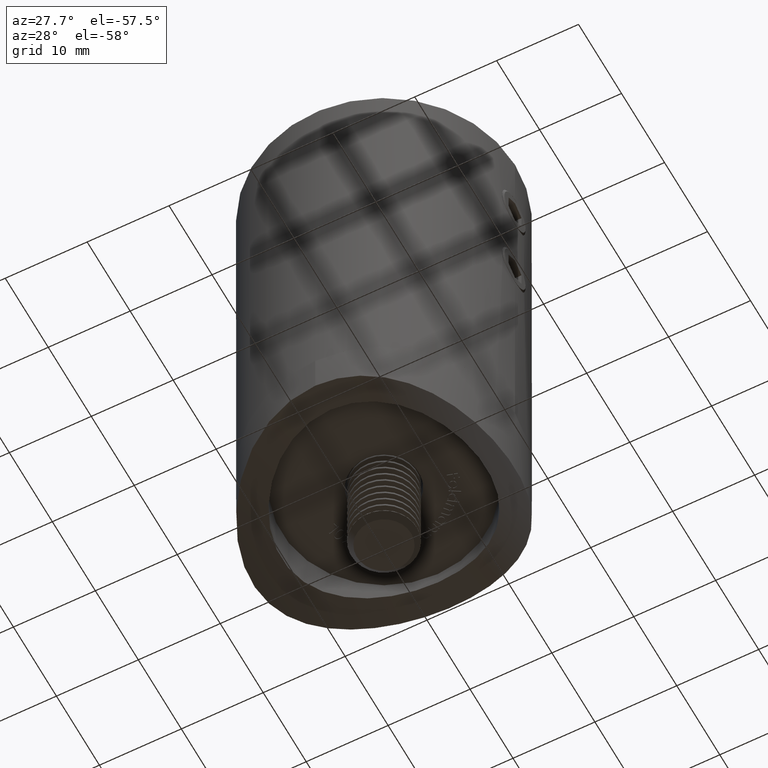
[diagram: clean part render]
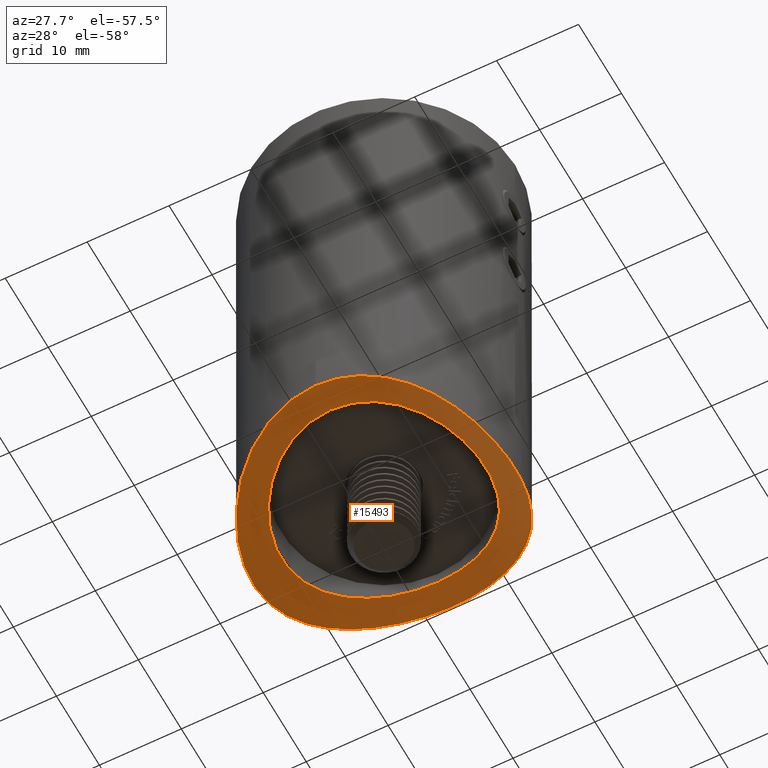
[diagram: same view with one face highlighted and labeled with its STEP entity id]
A machine part, auxiliary view. The second image highlights one B-rep face of the part: STEP entity #15493.
In plain terms, the highlighted cylindrical surface (partial cylindrical patch) has radius 24.15 mm, axis along (0, 1, 0).
Its self-contained STEP definition (entity closure, byte-faithful):
#168 = CARTESIAN_POINT ( 'NONE',  ( 4.878909776184769953E-16, 3.465933333802039860E-15, -16.00000000000000711 ) ) ;
#233 = EDGE_LOOP ( 'NONE', ( #15761 ) ) ;
#375 = CARTESIAN_POINT ( 'NONE',  ( -8.551384528557964160, -1.560042046064436416, 13.53284123907771175 ) ) ;
#447 = CARTESIAN_POINT ( 'NONE',  ( -1.042858073736825597, -0.01647405515341673898, 15.97517427357765563 ) ) ;
#516 = CARTESIAN_POINT ( 'NONE',  ( -15.42321579544490184, -5.566283524729522370, 4.265649853437405881 ) ) ;
#551 = CARTESIAN_POINT ( 'NONE',  ( 11.22171516179564854, -2.762517631140664509, 5.567231885764328148 ) ) ;
#585 = CARTESIAN_POINT ( 'NONE',  ( 5.320418285404791447, -0.5719942947260659993, 15.12623773592640930 ) ) ;
#626 = CARTESIAN_POINT ( 'NONE',  ( 0.8416139926660898274, 3.469446951953590917E-15, -12.50000000000000711 ) ) ;
#662 = CARTESIAN_POINT ( 'NONE',  ( 14.31986462821768313, -4.696873124689878054, -7.211724514559750610 ) ) ;
#698 = CARTESIAN_POINT ( 'NONE',  ( 11.67831068887509183, -3.010663022005199974, -4.475638660923369372 ) ) ;
#758 = CARTESIAN_POINT ( 'NONE',  ( 4.109752741455194425, -0.3489297180019296785, 11.81226899662650176 ) ) ;
#765 = FACE_OUTER_BOUND ( 'NONE', #7725, .T. ) ;
#822 = CARTESIAN_POINT ( 'NONE',  ( 1.693364542386448068, -0.04548548441427882616, 12.41272702035197284 ) ) ;
#890 = CARTESIAN_POINT ( 'NONE',  ( -12.40093975770249202, -3.427031647108957468, -1.625193573246781709 ) ) ;
#921 = CARTESIAN_POINT ( 'NONE',  ( -9.411353361399397599, -1.904576057870598804, -12.94954299253910968 ) ) ;
#984 = CARTESIAN_POINT ( 'NONE',  ( -0.5467149535870703403, 3.476223215531642281E-15, -16.00000000000000711 ) ) ;
#1742 = CARTESIAN_POINT ( 'NONE',  ( 5.275747725206339389, -0.5775232300563346577, -15.11469623726103606 ) ) ;
#1800 = VERTEX_POINT ( 'NONE', #15099 ) ;
#1953 = CARTESIAN_POINT ( 'NONE',  ( 4.310827683376341923, -0.3640347307496384910, 15.44594141629692352 ) ) ;
#2022 = CARTESIAN_POINT ( 'NONE',  ( -12.05392479121809046, -3.207642341430238186, 10.57031934000033147 ) ) ;
#2095 = CARTESIAN_POINT ( 'NONE',  ( -2.662944644146644446, -0.1413683881137999532, 15.78602135888619529 ) ) ;
#2133 = CARTESIAN_POINT ( 'NONE',  ( 11.83531592272858290, -3.098469632034195786, 4.042869024516788201 ) ) ;
#2168 = CARTESIAN_POINT ( 'NONE',  ( 15.89507951209992420, -5.966280007977300848, 2.121861214580270438 ) ) ;
#2199 = CARTESIAN_POINT ( 'NONE',  ( -1.630651670391556118, -0.05147306847736196622, 12.40031129654895992 ) ) ;
#2234 = CARTESIAN_POINT ( 'NONE',  ( 15.99889945513611700, -6.059734157207304683, -0.5739181088469769154 ) ) ;
#2269 = CARTESIAN_POINT ( 'NONE',  ( 9.923142205795825177, -2.131111030546360308, 7.612074174934297055 ) ) ;
#2296 = CARTESIAN_POINT ( 'NONE',  ( -7.232166046226576661, -1.086845825324251003, -14.31039729867868182 ) ) ;
#2333 = CARTESIAN_POINT ( 'NONE',  ( 5.594287980704874208, -0.6442781208208000487, -11.20816533570559592 ) ) ;
#2364 = CARTESIAN_POINT ( 'NONE',  ( -3.485726828505891106, -0.2514084154458020026, -15.61799768039313996 ) ) ;
#2399 = CARTESIAN_POINT ( 'NONE',  ( 7.643601615584866948, -1.239174722017980956, -9.898850495652817827 ) ) ;
#2425 = CARTESIAN_POINT ( 'NONE',  ( -14.33314076264084136, -4.706689628118392754, -7.185494220534367926 ) ) ;
#2464 = CARTESIAN_POINT ( 'NONE',  ( -10.16369364889731308, -2.241477199381396446, -7.287758421890135452 ) ) ;
#2489 = CARTESIAN_POINT ( 'NONE',  ( -4.268279367806601776, -0.3787143447972567412, -15.42252057435309176 ) ) ;
#2594 = CARTESIAN_POINT ( 'NONE',  ( -5.226925829154971836, -0.5693079560569049846, -11.36202694756623721 ) ) ;
#2662 = CARTESIAN_POINT ( 'NONE',  ( -2.094311208364756371, -0.08749313957578185030, -12.33032299215525818 ) ) ;
#3188 = CARTESIAN_POINT ( 'NONE',  ( 5.772343269960320988, -0.6946781532575976303, -14.93167379752965473 ) ) ;
#3464 = CARTESIAN_POINT ( 'NONE',  ( 2.162802222802237218, -0.07385003039676880932, -15.88913970827019284 ) ) ;
#3537 = CARTESIAN_POINT ( 'NONE',  ( -8.110807478866485454, -1.397652382978113561, 13.80164670675395300 ) ) ;
#3615 = CARTESIAN_POINT ( 'NONE',  ( 15.42559031887747523, -5.567332529912010664, -4.281581221595087250 ) ) ;
#3686 = CARTESIAN_POINT ( 'NONE',  ( 15.77490872757177520, -5.863532677428071160, -2.726765751964202789 ) ) ;
#3729 = CARTESIAN_POINT ( 'NONE',  ( 8.296859981971229203, -1.461839374236833189, 9.383618653070680438 ) ) ;
#3759 = CARTESIAN_POINT ( 'NONE',  ( 13.57136654030459866, -4.171130408817958823, 8.489749767725491836 ) ) ;
#3795 = CARTESIAN_POINT ( 'NONE',  ( -6.290458467577763280, -0.8231097910722736666, 10.83203505537224665 ) ) ;
#3833 = CARTESIAN_POINT ( 'NONE',  ( 12.70400355167247319, -3.608075241889363127, 9.739886530507446238 ) ) ;
#3868 = CARTESIAN_POINT ( 'NONE',  ( -0.3758445865019243159, 0.0006470260009834786878, 12.50125005891698926 ) ) ;
#3896 = CARTESIAN_POINT ( 'NONE',  ( -5.790292232700016584, -0.6991425015800778464, -14.92465879011944452 ) ) ;
#3934 = CARTESIAN_POINT ( 'NONE',  ( 9.412192866964707250, -1.907903693207506635, 8.235475087461974653 ) ) ;
#3964 = CARTESIAN_POINT ( 'NONE',  ( 0.000000000000000000, 3.469446951953614189E-15, -12.50000000000000000 ) ) ;
#3970 = CARTESIAN_POINT ( 'NONE',  ( -14.93763095668425933, -5.172266547697089045, -5.756278679030428336 ) ) ;
#4001 = CARTESIAN_POINT ( 'NONE',  ( 3.280682860040506466, -0.2205064101225591155, -12.06894086756878792 ) ) ;
#4192 = CARTESIAN_POINT ( 'NONE',  ( -0.4208069963330455243, 3.476223215531643070E-15, -12.50000000000000355 ) ) ;
#4786 = CARTESIAN_POINT ( 'NONE',  ( 9.842730464393167011, -2.077531809922397610, -12.65667063551272697 ) ) ;
#5123 = CARTESIAN_POINT ( 'NONE',  ( 15.44214941605699387, -5.581131056128653789, 4.221083223141256724 ) ) ;
#5195 = CARTESIAN_POINT ( 'NONE',  ( -13.81742950120149516, -4.341107592674501525, 8.083516411768695065 ) ) ;
#5228 = CARTESIAN_POINT ( 'NONE',  ( 9.394847521644635435, -1.900573235167552610, -8.255202184159772472 ) ) ;
#5264 = CARTESIAN_POINT ( 'NONE',  ( -15.88834132209191274, -5.960334649251885608, 2.171086772573057821 ) ) ;
#5301 = CARTESIAN_POINT ( 'NONE',  ( 0.8701867918572792071, -0.001390958110063332878, 12.49731265922301660 ) ) ;
#5330 = CARTESIAN_POINT ( 'NONE',  ( -5.258828131823481300, -0.5579214799764438126, 15.14813486559561007 ) ) ;
#5368 = CARTESIAN_POINT ( 'NONE',  ( -9.909193422454757538, -2.120910015980589147, 7.662299098335453529 ) ) ;
#5398 = CARTESIAN_POINT ( 'NONE',  ( 6.773507639207513975, -0.9639315492255671192, 14.50507062910953238 ) ) ;
#5439 = CARTESIAN_POINT ( 'NONE',  ( 9.125846458580159748, -1.788567383216229878, -8.551539796307121577 ) ) ;
#5500 = CARTESIAN_POINT ( 'NONE',  ( 10.14872829841706015, -2.234525669153278660, -7.308644647692618790 ) ) ;
#5692 = CARTESIAN_POINT ( 'NONE',  ( -9.411987761562494725, -1.907810120690277333, -8.235748521031599267 ) ) ;
#5729 = VERTEX_POINT ( 'NONE', #3964 ) ;
#5762 = CARTESIAN_POINT ( 'NONE',  ( -12.07716066025249901, -3.235827473606688987, 3.330140473100307918 ) ) ;
#6169 = CYLINDRICAL_SURFACE ( 'NONE', #12709, 24.15000000000000568 ) ;
#6429 = CARTESIAN_POINT ( 'NONE',  ( 4.251902136647176533, -0.3715117522175356291, -15.43401712533286130 ) ) ;
#6494 = CARTESIAN_POINT ( 'NONE',  ( 11.69353741336916208, -3.015975473543497376, -10.93237706803038733 ) ) ;
#6689 = CARTESIAN_POINT ( 'NONE',  ( -6.721650818704468122, -0.9487792169212915239, 14.52927135399406566 ) ) ;
#6759 = CARTESIAN_POINT ( 'NONE',  ( -14.53161606438342801, -4.859603105429813219, 6.715620687923966159 ) ) ;
#6797 = CARTESIAN_POINT ( 'NONE',  ( -2.042669042519714040, -0.08308288046927303494, 12.33891662597603656 ) ) ;
#6827 = CARTESIAN_POINT ( 'NONE',  ( -16.00015859834054766, -6.060847867454414839, -0.2633096187692477441 ) ) ;
#6864 = CARTESIAN_POINT ( 'NONE',  ( 11.20659804588976982, -2.754610452288815292, -5.596363829670498724 ) ) ;
#6901 = CARTESIAN_POINT ( 'NONE',  ( 15.13104560772049645, -5.326760872273300862, 5.227712786830983838 ) ) ;
#6935 = CARTESIAN_POINT ( 'NONE',  ( -10.79939258952036774, -2.548087003692995900, 6.307741837057448286 ) ) ;
#6970 = CARTESIAN_POINT ( 'NONE',  ( 8.600228732240525531, -1.578661036202237966, 13.50173790755023617 ) ) ;
#7009 = CARTESIAN_POINT ( 'NONE',  ( 12.49774924526884412, -3.485325542013122391, -0.8654298213824856978 ) ) ;
#7043 = CARTESIAN_POINT ( 'NONE',  ( -15.56725914140275968, -5.686447009818094145, -3.734377750765781823 ) ) ;
#7079 = CARTESIAN_POINT ( 'NONE',  ( 4.463086516404185744, -0.4128668850851535677, -11.68324080886737981 ) ) ;
#7110 = CARTESIAN_POINT ( 'NONE',  ( -3.747472486822372773, -0.2910670728257301332, -15.55727481239877008 ) ) ;
#7207 = CARTESIAN_POINT ( 'NONE',  ( -0.8415633137906058936, -0.01104361446218677344, -12.47870299761530077 ) ) ;
#7274 = CARTESIAN_POINT ( 'NONE',  ( -6.316747293375139627, -0.8377765374019664479, -10.79430669075418692 ) ) ;
#7338 = CARTESIAN_POINT ( 'NONE',  ( -12.47702995727797948, -3.472750038800189731, 0.8636410543319921196 ) ) ;
#7404 = CARTESIAN_POINT ( 'NONE',  ( -11.20397708090773037, -2.755140858187857589, -5.557493264728312177 ) ) ;
#7725 = EDGE_LOOP ( 'NONE', ( #11529 ) ) ;
#7993 = CARTESIAN_POINT ( 'NONE',  ( 1.093429907174150006, 3.445353570342834229E-15, -16.00000000000000711 ) ) ;
#8058 = CARTESIAN_POINT ( 'NONE',  ( 12.68024191844236270, -3.593356043621906082, -9.770904417435113842 ) ) ;
#8185 = DIRECTION ( 'NONE',  ( 1.000000000000000000, 0.000000000000000000, 0.000000000000000000 ) ) ;
#8193 = CARTESIAN_POINT ( 'NONE',  ( 0.03513741029744595068, 0.01797691695324645997, 16.02709411151440477 ) ) ;
#8266 = CARTESIAN_POINT ( 'NONE',  ( -9.401984288177461124, -1.900616431894089908, 12.95633670457074338 ) ) ;
#8335 = CARTESIAN_POINT ( 'NONE',  ( -15.11478067928221591, -5.313678253764541282, 5.274540260561693117 ) ) ;
#8375 = CARTESIAN_POINT ( 'NONE',  ( 12.06284593198464350, -3.228001797514791882, -3.302785208884873924 ) ) ;
#8402 = CARTESIAN_POINT ( 'NONE',  ( 13.00573230629547439, -3.798387113308692609, 9.333207812262424241 ) ) ;
#8441 = CARTESIAN_POINT ( 'NONE',  ( 3.322960808794985788, -0.2263935488872669266, 12.05726743121238265 ) ) ;
#8478 = CARTESIAN_POINT ( 'NONE',  ( 9.865639215707155074, -2.088296295899021882, 12.63774528741735281 ) ) ;
#8515 = CARTESIAN_POINT ( 'NONE',  ( 12.33814508041329283, -3.389424442378365487, 2.047052564725856172 ) ) ;
#8578 = CARTESIAN_POINT ( 'NONE',  ( 7.317373504727922473, -1.132564767861668154, -10.14252889460935947 ) ) ;
#8642 = CARTESIAN_POINT ( 'NONE',  ( 12.17629244726874838, -3.294084202614605772, 2.856247619983864006 ) ) ;
#8709 = CARTESIAN_POINT ( 'NONE',  ( -4.099037510848110522, -0.3380375637845913217, -11.83695617156265101 ) ) ;
#8740 = CARTESIAN_POINT ( 'NONE',  ( -12.05805447839437150, -3.210101427612138458, -10.56539283169655796 ) ) ;
#8774 = CARTESIAN_POINT ( 'NONE',  ( -11.36069409278679032, -2.838285258480942375, 5.229597903835168538 ) ) ;
#8801 = CARTESIAN_POINT ( 'NONE',  ( -15.96566512601532395, -6.030386982001304297, -1.082498266701986678 ) ) ;
#8971 = CARTESIAN_POINT ( 'NONE',  ( -3.316877259944524869, -0.2148307166161520787, -12.08057711187186278 ) ) ;
#9621 = CARTESIAN_POINT ( 'NONE',  ( 13.83397895794804278, -4.343367616628929007, -8.102301808186028964 ) ) ;
#9760 = CARTESIAN_POINT ( 'NONE',  ( -4.245353141207407255, -0.3522660549656061457, 15.46402130076265458 ) ) ;
#9832 = CARTESIAN_POINT ( 'NONE',  ( 12.06181014241624005, -3.224534291990288626, 10.52472479242910453 ) ) ;
#9900 = CARTESIAN_POINT ( 'NONE',  ( 15.96965923795028885, -6.033763058675402746, -1.123321241678105542 ) ) ;
#9937 = CARTESIAN_POINT ( 'NONE',  ( 11.69463221032095568, -3.019683490822727912, 4.433206286189491863 ) ) ;
#9977 = CARTESIAN_POINT ( 'NONE',  ( 15.57501006091767515, -5.692989327537908650, 3.702434811011921845 ) ) ;
#10013 = CARTESIAN_POINT ( 'NONE',  ( 2.916893301379980930, -0.1732949648051450575, 12.16203323285878213 ) ) ;
#10042 = CARTESIAN_POINT ( 'NONE',  ( 13.83527688763129326, -4.353578128611939491, 8.052981158596610456 ) ) ;
#10081 = CARTESIAN_POINT ( 'NONE',  ( 1.666427008392846520, -0.04383638825327753480, -12.41589289394554996 ) ) ;
#10147 = CARTESIAN_POINT ( 'NONE',  ( 12.41328738822395827, -3.433597884895211116, -1.685670540479240698 ) ) ;
#10218 = CARTESIAN_POINT ( 'NONE',  ( 12.50105946675680713, -3.487328007451254042, 0.3829992845280518754 ) ) ;
#10284 = CARTESIAN_POINT ( 'NONE',  ( -10.81973109692051871, -2.558276606120126750, -6.272818569617435003 ) ) ;
#10315 = CARTESIAN_POINT ( 'NONE',  ( -9.825312265958483948, -2.084764760639122194, -12.63824017794604337 ) ) ;
#10386 = CARTESIAN_POINT ( 'NONE',  ( -15.43338607518128391, -5.573817127507202152, -4.253440794167246075 ) ) ;
#10488 = CARTESIAN_POINT ( 'NONE',  ( -11.85457163419845017, -3.106690732645334130, -4.048891219634814576 ) ) ;
#11356 = CARTESIAN_POINT ( 'NONE',  ( 14.32465776655085676, -4.704759313945467092, 7.146297780622557383 ) ) ;
#11431 = CARTESIAN_POINT ( 'NONE',  ( -10.60246786348570325, -2.447457319275142318, 11.99379377658119594 ) ) ;
#11505 = CARTESIAN_POINT ( 'NONE',  ( 10.64387692798092822, -2.456888350107875318, 11.98939423343472832 ) ) ;
#11529 = ORIENTED_EDGE ( 'NONE', *, *, #12904, .T. ) ;
#11545 = CARTESIAN_POINT ( 'NONE',  ( 9.905737200678290222, -2.123277097359831167, -7.634650847773378324 ) ) ;
#11582 = CARTESIAN_POINT ( 'NONE',  ( 1.111836551517509042, -0.01958014879024436855, 15.97048600726808054 ) ) ;
#11616 = CARTESIAN_POINT ( 'NONE',  ( 10.82438516625331992, -2.555926955366531139, -6.303536818163585131 ) ) ;
#11654 = CARTESIAN_POINT ( 'NONE',  ( 15.55894929646023961, -5.679436140364019003, -3.768566520506819728 ) ) ;
#11692 = CARTESIAN_POINT ( 'NONE',  ( 8.560607551957421180, -1.566139820617232781, -9.117340885081242519 ) ) ;
#11761 = CARTESIAN_POINT ( 'NONE',  ( -7.632636067880911312, -1.227161144243663626, 9.932055065716143716 ) ) ;
#11791 = CARTESIAN_POINT ( 'NONE',  ( -13.84608556975143934, -4.351583562790193760, -8.083047669827825743 ) ) ;
#11830 = CARTESIAN_POINT ( 'NONE',  ( -0.7937935283653483332, -0.009413491511894042305, 12.48185230467802320 ) ) ;
#11839 = FACE_BOUND ( 'NONE', #233, .T. ) ;
#11858 = CARTESIAN_POINT ( 'NONE',  ( -15.11790863573347821, -5.316178976651885435, -5.265928485718427865 ) ) ;
#11894 = CARTESIAN_POINT ( 'NONE',  ( -11.38086847299331694, -2.849046002857148707, -5.185983993912951284 ) ) ;
#11961 = CARTESIAN_POINT ( 'NONE',  ( -6.665751520387543039, -0.9355089565335658053, -10.58210857748916034 ) ) ;
#11987 = CARTESIAN_POINT ( 'NONE',  ( 4.878909776184769953E-16, 3.465933333802039860E-15, -16.00000000000000711 ) ) ;
#12017 = CARTESIAN_POINT ( 'NONE',  ( -7.670003217709719934, -1.239676964406403403, -9.903237437807737464 ) ) ;
#12087 = CARTESIAN_POINT ( 'NONE',  ( -12.39229586063314947, -3.421856189825289274, 1.689128689021146101 ) ) ;
#12155 = CARTESIAN_POINT ( 'NONE',  ( -12.50113647660907823, -3.487374592744736823, -0.3784457863118969589 ) ) ;
#12709 = AXIS2_PLACEMENT_3D ( 'NONE', #15647, #20288, #8185 ) ;
#12904 = EDGE_CURVE ( 'NONE', #1800, #1800, #19366, .T. ) ;
#12960 = CARTESIAN_POINT ( 'NONE',  ( -7.197102279576335526, -1.092327983459493224, 14.29938350260618485 ) ) ;
#13022 = CARTESIAN_POINT ( 'NONE',  ( -12.69487955101366694, -3.594529789712058943, 9.791735161200366022 ) ) ;
#13098 = CARTESIAN_POINT ( 'NONE',  ( -15.55701186269881831, -5.678143422764770243, 3.748431145004460951 ) ) ;
#13139 = CARTESIAN_POINT ( 'NONE',  ( 10.16551749499001644, -2.242316943920116490, 7.285275361540620942 ) ) ;
#13175 = CARTESIAN_POINT ( 'NONE',  ( 15.10850992129838311, -5.308628103353483674, -5.292797218956190264 ) ) ;
#13215 = CARTESIAN_POINT ( 'NONE',  ( -5.575696691962559015, -0.6395565428234447625, 11.21809945721803992 ) ) ;
#13247 = CARTESIAN_POINT ( 'NONE',  ( 16.00210777862565337, -6.062571913201299623, 1.053190261119271165 ) ) ;
#13283 = CARTESIAN_POINT ( 'NONE',  ( 9.143358402556374998, -1.795727440652015616, 8.532821530365831464 ) ) ;
#13351 = CARTESIAN_POINT ( 'NONE',  ( 11.81847010116291941, -3.088992777373849030, -4.091992984200407690 ) ) ;
#13384 = CARTESIAN_POINT ( 'NONE',  ( -15.86294566125995331, -5.940256868134336621, -2.158315827595793657 ) ) ;
#13423 = CARTESIAN_POINT ( 'NONE',  ( 8.264370655871712046, -1.455711329976477675, -9.386802674788901513 ) ) ;
#13492 = CARTESIAN_POINT ( 'NONE',  ( -5.595272729540670120, -0.6541709611997966745, -11.18531521167290421 ) ) ;
#13519 = CARTESIAN_POINT ( 'NONE',  ( -2.164908011609237182, -0.09120946649448465060, -15.86204911743261192 ) ) ;
#13558 = CARTESIAN_POINT ( 'NONE',  ( -12.33897836552499960, -3.389917376965435380, -2.042544866178391150 ) ) ;
#13623 = CARTESIAN_POINT ( 'NONE',  ( -1.676951933329628108, -0.05466276626705903613, -12.39411511674446054 ) ) ;
#13760 = CARTESIAN_POINT ( 'NONE',  ( -11.83278988928865871, -3.094459033048017726, 4.109907718995613912 ) ) ;
#14225 = CARTESIAN_POINT ( 'NONE',  ( 7.219911771601451811, -1.082844712613556526, -14.31684989439542477 ) ) ;
#14352 = CARTESIAN_POINT ( 'NONE',  ( 8.130541118761520636, -1.391100727126341585, -13.81900704416462489 ) ) ;
#14491 = CARTESIAN_POINT ( 'NONE',  ( 3.733504146602000251, -0.2844914261029866664, -15.56748423215123900 ) ) ;
#14560 = CARTESIAN_POINT ( 'NONE',  ( 14.92631007649248787, -5.163351808448463309, -5.785511287820154891 ) ) ;
#14630 = CARTESIAN_POINT ( 'NONE',  ( -13.54947436980915754, -4.156239725927494355, 8.524743713000582090 ) ) ;
#14702 = CARTESIAN_POINT ( 'NONE',  ( -15.61797815048892524, -5.729731015479998746, 3.485802845067987210 ) ) ;
#14741 = CARTESIAN_POINT ( 'NONE',  ( 5.616393516081360282, -0.6497255878473398027, 11.19673421751229547 ) ) ;
#14773 = CARTESIAN_POINT ( 'NONE',  ( 2.187881182888611331, -0.09326494938473635365, 15.85893296924522211 ) ) ;
#14808 = CARTESIAN_POINT ( 'NONE',  ( -9.399704287991005103, -1.896005990789425777, 8.278850895681342692 ) ) ;
#14836 = CARTESIAN_POINT ( 'NONE',  ( 14.95227849257499919, -5.183806075202462615, 5.718345991040335363 ) ) ;
#14874 = CARTESIAN_POINT ( 'NONE',  ( -8.264077568507033789, -1.449786080185160531, 9.412695405477592203 ) ) ;
#14906 = CARTESIAN_POINT ( 'NONE',  ( -2.696456683992734860, -0.1451357774197707673, -15.78029447197594415 ) ) ;
#14946 = CARTESIAN_POINT ( 'NONE',  ( -3.260479979501046621, -0.2071982398510623935, 12.09564845651103049 ) ) ;
#15099 = CARTESIAN_POINT ( 'NONE',  ( 0.000000000000000000, 3.469446951953614189E-15, -16.00000000000000000 ) ) ;
#15102 = CARTESIAN_POINT ( 'NONE',  ( -10.61283868468660785, -2.452557239509840503, -11.98455384951243552 ) ) ;
#15165 = CARTESIAN_POINT ( 'NONE',  ( -8.135421732675848006, -1.393083533478103542, -13.81563811289492705 ) ) ;
#15493 = ADVANCED_FACE ( 'NONE', ( #765, #11839 ), #6169, .F. ) ;
#15647 = CARTESIAN_POINT ( 'NONE',  ( 0.000000000000000000, -24.15000000000000213, -16.00000000000000000 ) ) ;
#15761 = ORIENTED_EDGE ( 'NONE', *, *, #16419, .F. ) ;
#16142 = CARTESIAN_POINT ( 'NONE',  ( 8.161962422206624268, -1.415961414347748804, 13.77146542663681217 ) ) ;
#16211 = CARTESIAN_POINT ( 'NONE',  ( -14.30811814937147197, -4.692576443698980526, 7.179300148596226450 ) ) ;
#16246 = CARTESIAN_POINT ( 'NONE',  ( 10.83888041841365180, -2.563234087021752927, 6.278582914400732129 ) ) ;
#16277 = CARTESIAN_POINT ( 'NONE',  ( -15.99935160277725288, -6.060134079170732768, 1.100573636296142022 ) ) ;
#16313 = CARTESIAN_POINT ( 'NONE',  ( -4.048937038016205747, -0.3290962804506795125, 11.85496764630669020 ) ) ;
#16346 = CARTESIAN_POINT ( 'NONE',  ( -10.98046573634212564, -2.636838702646092436, 11.64845743729608074 ) ) ;
#16385 = CARTESIAN_POINT ( 'NONE',  ( -10.58722758480828396, -2.442956972001324001, 6.657615752389726360 ) ) ;
#16417 = CARTESIAN_POINT ( 'NONE',  ( 2.728854609169550915, -0.1487693586672239332, 15.77477219835120970 ) ) ;
#16419 = EDGE_CURVE ( 'NONE', #5729, #5729, #17382, .T. ) ;
#16450 = CARTESIAN_POINT ( 'NONE',  ( 4.073928212782695901, -0.3427185001470134940, -11.82477579534296197 ) ) ;
#16477 = CARTESIAN_POINT ( 'NONE',  ( -15.78160284456452800, -5.869317358116089345, -2.688149180651069337 ) ) ;
#16518 = CARTESIAN_POINT ( 'NONE',  ( 12.39939560149940156, -3.426106614345843404, 1.636956017459154866 ) ) ;
#16542 = CARTESIAN_POINT ( 'NONE',  ( -5.295071900945006682, -0.5818699998367168336, -15.10791962739741479 ) ) ;
#16647 = CARTESIAN_POINT ( 'NONE',  ( -8.287351939170422455, -1.458261868603524691, -9.392409702269290506 ) ) ;
#16709 = CARTESIAN_POINT ( 'NONE',  ( -12.09488317661415557, -3.246125444680883376, -3.263940484297829681 ) ) ;
#16739 = CARTESIAN_POINT ( 'NONE',  ( -12.70201650511801361, -3.598840525902970100, -9.783073236018308805 ) ) ;
#16770 = CARTESIAN_POINT ( 'NONE',  ( -9.139284782924383066, -1.794035604485923141, -8.537292556855796022 ) ) ;
#16838 = CARTESIAN_POINT ( 'NONE',  ( -12.32893162694468892, -3.383935725384860760, 2.102821018098293582 ) ) ;
#17361 = CARTESIAN_POINT ( 'NONE',  ( 10.62306975625455330, -2.446863621940090994, -12.00721163866094088 ) ) ;
#17382 = B_SPLINE_CURVE_WITH_KNOTS ( 'NONE', 3,
 ( #19508, #626, #10081, #19441, #4001, #16450, #7079, #2333, #18017, #8578, #2399, #13423, #11692, #5439, #5228, #11545, #5500, #11616, #6864, #698, #13351, #8375, #18079, #10147, #7009, #10218, #17884, #16518, #8515, #8642, #19580, #2133, #9937, #551, #16246, #13139, #2269, #3934, #13283, #3729, #17808, #19376, #14741, #19645, #758, #8441, #10013, #822, #5301, #3868, #11830, #2199, #6797, #14946, #16313, #13215, #3795, #11761, #14874, #14808, #5368, #16385, #6935, #17949, #8774, #13760, #5762, #16838, #12087, #7338, #18341, #12155, #19711, #890, #13558, #16709, #10488, #11894, #7404, #10284, #18406, #2464, #19783, #5692, #16770, #16647, #12017, #11961, #7274, #13492, #2594, #8709, #8971, #2662, #13623, #7207, #4192, #19975 ),
 .UNSPECIFIED., .T., .F.,
 ( 4, 2, 2, 2, 2, 2, 2, 2, 2, 2, 2, 2, 2, 2, 2, 2, 2, 2, 2, 2, 2, 2, 2, 2, 2, 2, 2, 2, 2, 2, 2, 2, 2, 2, 2, 2, 2, 2, 2, 2, 2, 2, 2, 2, 2, 2, 2, 2, 4 ),
 ( 0.000000000000000000, 0.002486133216992814955, 0.003729199825489223300, 0.004972266433985629910, 0.007458399650978444866, 0.008701466259474852777, 0.009944532867971263290, 0.01118759947646767207, 0.01243066608496408258, 0.01491679930195690881, 0.01615986591045331933, 0.01740293251894972984, 0.01988906573594255434, 0.02113213234443896485, 0.02237519895293538230, 0.02361826556143179281, 0.02486133216992819986, 0.02734746538692102782, 0.02859053199541743834, 0.02983359860391384538, 0.03231973182090667335, 0.03480586503789949437, 0.03604893164639590836, 0.03729199825489231540, 0.03977813147188515031, 0.04102119808038156429, 0.04226426468887796439, 0.04475039790587079930, 0.04723653112286362032, 0.04972266433985644135, 0.05220879755684926932, 0.05345186416534567636, 0.05469493077384207647, 0.05718106399083489749, 0.05842413059933130454, 0.05966719720782771158, 0.06091026381632412556, 0.06215333042482052567, 0.06463946364181334669, 0.06588253025030975374, 0.06712559685880616078, 0.06836866346730258170, 0.06961173007579897487, 0.07209786329279180284, 0.07334092990128820988, 0.07458399650978461692, 0.07707012972677744489, 0.07831319633527385193, 0.07955626294377025898 ),
 .UNSPECIFIED. ) ;
#17490 = CARTESIAN_POINT ( 'NONE',  ( 12.03352161052860225, -3.208211549429214049, -10.55715235723237377 ) ) ;
#17695 = CARTESIAN_POINT ( 'NONE',  ( 15.85751406783431783, -5.935519368400823836, -2.197979612437904962 ) ) ;
#17766 = CARTESIAN_POINT ( 'NONE',  ( -14.93494299043501883, -5.170148692227709120, 5.763237331498226368 ) ) ;
#17808 = CARTESIAN_POINT ( 'NONE',  ( 7.679687139352869174, -1.242732285119620084, 9.896326891067060316 ) ) ;
#17845 = CARTESIAN_POINT ( 'NONE',  ( -15.99326873482955236, -6.054746644116492327, -0.5381640911452839626 ) ) ;
#17884 = CARTESIAN_POINT ( 'NONE',  ( 12.48103956478301058, -3.475174251646905965, 0.8051631312347367064 ) ) ;
#17913 = CARTESIAN_POINT ( 'NONE',  ( 7.249697420507559720, -1.108818860428955722, 14.27279853040922930 ) ) ;
#17949 = CARTESIAN_POINT ( 'NONE',  ( -11.18556598586050121, -2.745499562508696201, 5.594425883101220798 ) ) ;
#18017 = CARTESIAN_POINT ( 'NONE',  ( 6.306957372526911243, -0.8274806807961548882, -10.82273894371698297 ) ) ;
#18044 = CARTESIAN_POINT ( 'NONE',  ( -1.090827547207879444, -0.01864438337379884306, -15.97189795124006473 ) ) ;
#18079 = CARTESIAN_POINT ( 'NONE',  ( 12.16623829432023385, -3.288210147253527005, -2.898783021241129632 ) ) ;
#18341 = CARTESIAN_POINT ( 'NONE',  ( -12.49876076068150432, -3.485937442637155659, 0.4501265013655241232 ) ) ;
#18406 = CARTESIAN_POINT ( 'NONE',  ( -10.61159664689885851, -2.454884040471554840, -6.618618285412083857 ) ) ;
#19066 = CARTESIAN_POINT ( 'NONE',  ( 12.98469313883087395, -3.784955582294040610, -9.362388113636884057 ) ) ;
#19199 = CARTESIAN_POINT ( 'NONE',  ( -2.121512090381802995, -0.08729412674241480985, 15.86798451232856699 ) ) ;
#19269 = CARTESIAN_POINT ( 'NONE',  ( -9.812002301453734532, -2.078813026001570918, 12.64863726998572169 ) ) ;
#19339 = CARTESIAN_POINT ( 'NONE',  ( -15.35038739144273912, -5.506009415625038095, 4.520503226235753402 ) ) ;
#19366 = B_SPLINE_CURVE_WITH_KNOTS ( 'NONE', 3,
 ( #168, #7993, #3464, #14491, #6429, #1742, #3188, #14225, #14352, #4786, #17361, #6494, #17490, #8058, #19066, #9621, #662, #14560, #13175, #3615, #11654, #3686, #17695, #9900, #2234, #13247, #2168, #9977, #5123, #6901, #14836, #19407, #11356, #10042, #3759, #8402, #3833, #9832, #19469, #11505, #8478, #6970, #16142, #17913, #5398, #585, #1953, #16417, #14773, #11582, #8193, #447, #19199, #2095, #9760, #5330, #6689, #12960, #3537, #375, #8266, #19269, #11431, #16346, #2022, #13022, #14630, #5195, #16211, #6759, #17766, #8335, #19339, #516, #13098, #14702, #5264, #16277, #6827, #17845, #8801, #19540, #13384, #16477, #7043, #10386, #11858, #3970, #2425, #11791, #16739, #8740, #19812, #15102, #10315, #921, #15165, #2296, #3896, #16542, #19681, #2489, #7110, #2364, #14906, #13519, #18044, #984, #11987 ),
 .UNSPECIFIED., .T., .F.,
 ( 4, 2, 2, 2, 2, 2, 2, 2, 2, 2, 2, 2, 2, 2, 2, 2, 2, 2, 2, 2, 2, 2, 2, 2, 2, 1, 2, 2, 2, 2, 2, 2, 2, 2, 2, 2, 2, 2, 2, 2, 2, 2, 2, 2, 2, 2, 2, 2, 2, 2, 2, 2, 2, 2, 4 ),
 ( 0.000000000000000000, 0.003228062074980117893, 0.004842093112470175972, 0.006456124149960234052, 0.009684186224940350210, 0.01291224829992046463, 0.01452627933741052271, 0.01614031037490058079, 0.01936837244988069348, 0.02098240348737074809, 0.02259643452486080617, 0.02421046556235086078, 0.02582449659984091886, 0.02905255867482102808, 0.03066658971231108963, 0.03228062074980114771, 0.03389465178729120926, 0.03550868282478126386, 0.03712271386227132541, 0.03873674489976138696, 0.04196480697474149618, 0.04357883801223155773, 0.04519286904972161234, 0.04842093112470172156, 0.05003496216219178311, 0.05164899319968183772, 0.05326302423717189233, 0.05487705527466195388, 0.05810511734964207003, 0.05971914838713213852, 0.06133317942462219313, 0.06294721046211225468, 0.06456124149960230929, 0.06778930357458241851, 0.06940333461207248700, 0.07101736564956254161, 0.07263139668705261009, 0.07343841220579763740, 0.07424542772454266470, 0.07747348979952277392, 0.07828050531826780123, 0.07908752083701282853, 0.08070155187450288314, 0.08231558291199293775, 0.08392961394948299236, 0.08715767602446312934, 0.09038573809944323856, 0.09199976913693329317, 0.09361380017442334778, 0.09684186224940345700, 0.09845589328689352548, 0.09926290880563855279, 0.1000699243243835801, 0.1016839553618736347, 0.1032979863993636754 ),
 .UNSPECIFIED. ) ;
#19376 = CARTESIAN_POINT ( 'NONE',  ( 6.328959426137796385, -0.8333797195681819092, 10.81014121441067566 ) ) ;
#19407 = CARTESIAN_POINT ( 'NONE',  ( 14.54965497398694829, -4.873208662993606666, 6.676649843349944824 ) ) ;
#19441 = CARTESIAN_POINT ( 'NONE',  ( 2.880084786186518642, -0.1689030195233190701, -12.17068015586779595 ) ) ;
#19469 = CARTESIAN_POINT ( 'NONE',  ( 11.71979043406766152, -3.030478474650312393, 10.90439978711422953 ) ) ;
#19508 = CARTESIAN_POINT ( 'NONE',  ( -4.878909776184769953E-16, 3.473964461005626211E-15, -12.50000000000000533 ) ) ;
#19540 = CARTESIAN_POINT ( 'NONE',  ( -15.94499217889639553, -6.012165319143346842, -1.352799867263029254 ) ) ;
#19580 = CARTESIAN_POINT ( 'NONE',  ( 12.07568711241505888, -3.235425785179558034, 3.255345404598880776 ) ) ;
#19645 = CARTESIAN_POINT ( 'NONE',  ( 4.493358900822074453, -0.4186221600621639061, 11.67154270457319321 ) ) ;
#19681 = CARTESIAN_POINT ( 'NONE',  ( -4.528215867626921742, -0.4268937406720419991, -15.34819261451298544 ) ) ;
#19711 = CARTESIAN_POINT ( 'NONE',  ( -12.48178325670625632, -3.475624290883715162, -0.7935034702485310731 ) ) ;
#19783 = CARTESIAN_POINT ( 'NONE',  ( -9.923924471011339676, -2.131456738813707119, -7.611096531981353053 ) ) ;
#19812 = CARTESIAN_POINT ( 'NONE',  ( -10.98755386895284758, -2.640477864831261456, -11.64172284715012751 ) ) ;
#19975 = CARTESIAN_POINT ( 'NONE',  ( -4.878909776184769953E-16, 3.473964461005626211E-15, -12.50000000000000533 ) ) ;
#20288 = DIRECTION ( 'NONE',  ( -0.000000000000000000, -0.000000000000000000, 1.000000000000000000 ) ) ;